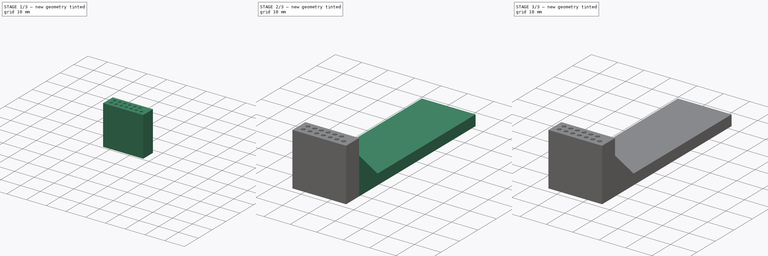
[diagram: build sequence overview — one tinted view per stage of 3, left to right]
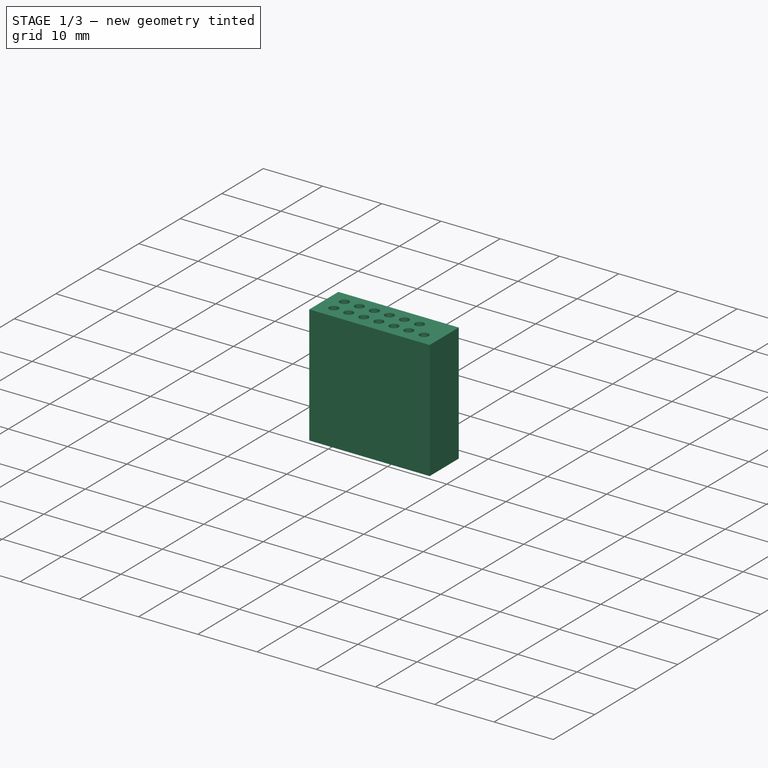
[diagram: stage 1 of 3 — iso view after this stage's code; geometry added in this stage tinted green]
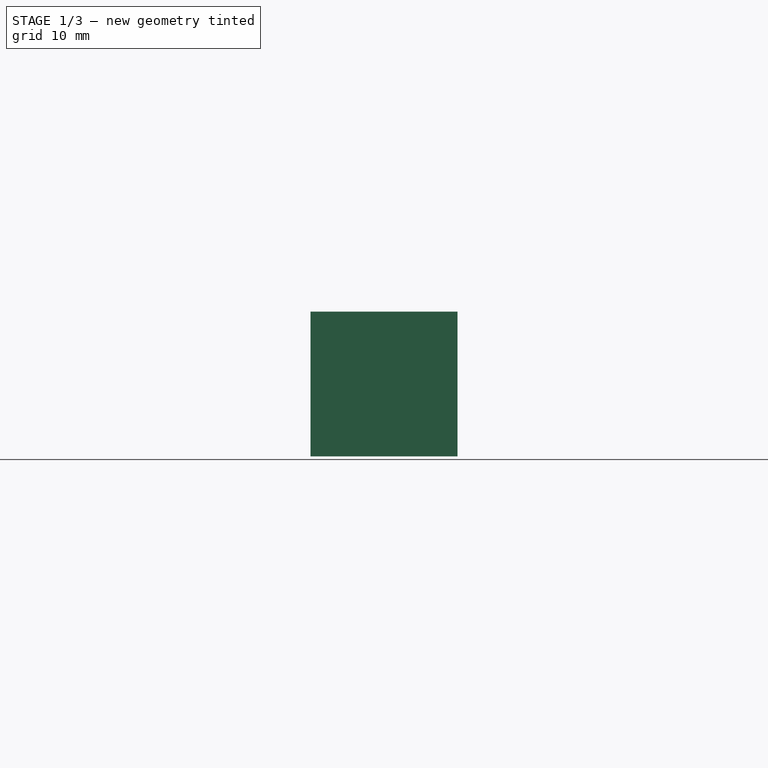
[diagram: stage 1 of 3 — front view after this stage's code; geometry added in this stage tinted green]
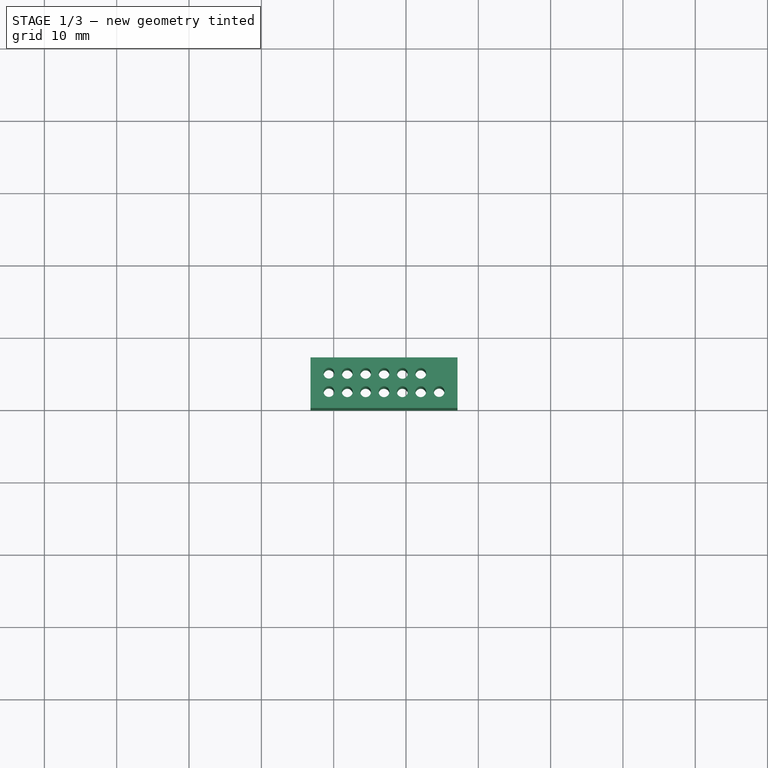
[diagram: stage 1 of 3 — top view after this stage's code; geometry added in this stage tinted green]
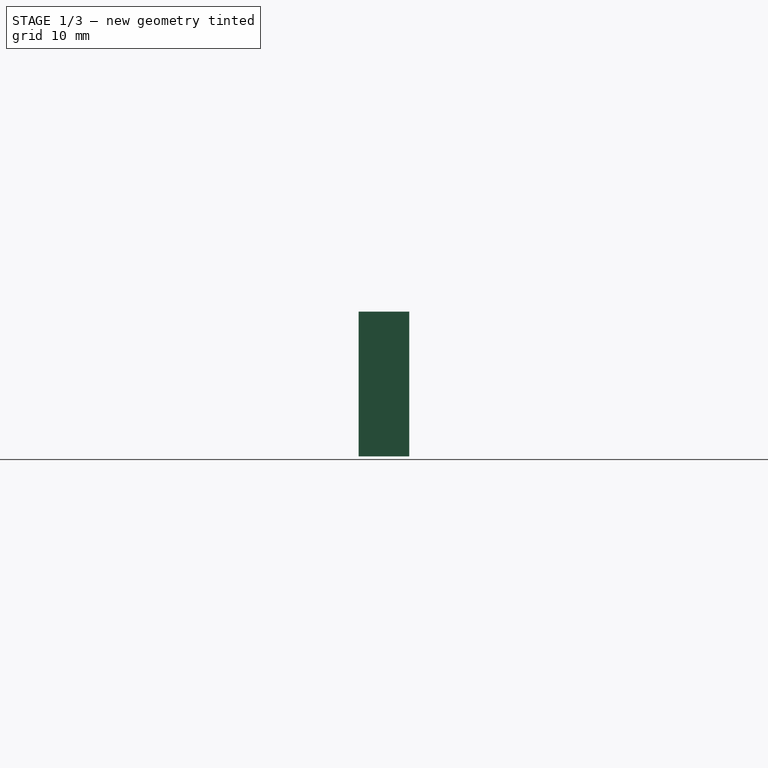
[diagram: stage 1 of 3 — right view after this stage's code; geometry added in this stage tinted green]
FCSTD DOCUMENT  (FreeCAD 0.16R6712 (Git))
Label: PogoProgrammer03
License: All rights reserved
LicenseURL: http://en.wikipedia.org/wiki/All_rights_reserved
objects: Sketcher::SketchObject×3, Part::Box×2, PartDesign::Pad×2, PartDesign::Pocket×1, Part::MultiFuse×1, Part::Chamfer×1
note: 13 computed .brp shape members not serialized (recipe doc carries the construction recipe); baked Part::Feature solids carry a one-line shape summary decoded from their .brp

FEATURE [Part::Box] Box  label="Cube"
  Height = 20
  Length = 20.32
  Placement = pos=(-3.2,0,0) rot=(0,0,1;0rad)
  Width = 7
FEATURE [PartDesign::Pocket] Pocket
  Length = 20
  Placement = pos=(-3.2,0,0) rot=(0,0,1;0rad)
  Sketch = -> Sketch
  Type = 0
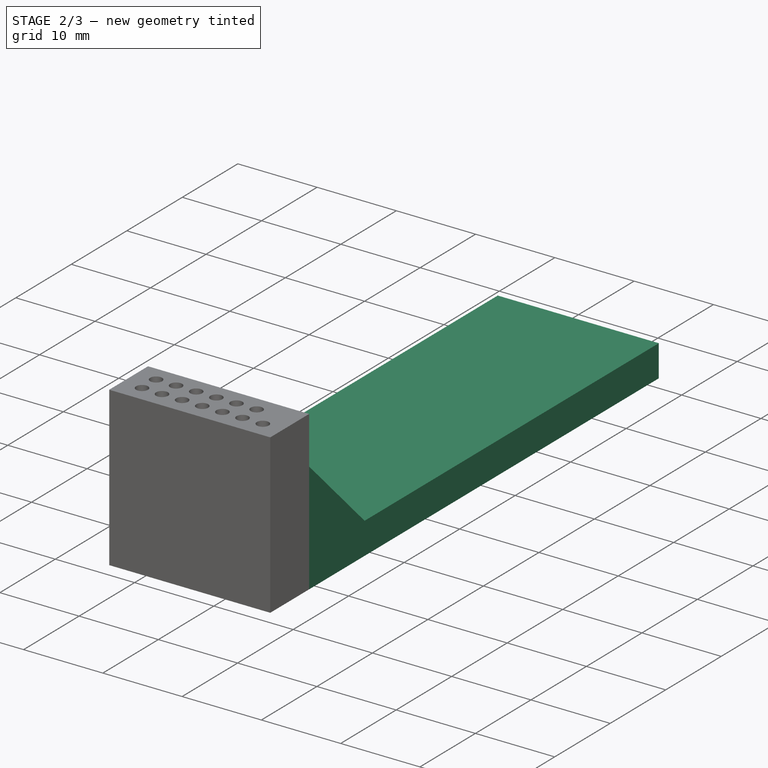
[diagram: stage 2 of 3 — iso view after this stage's code; geometry added in this stage tinted green]
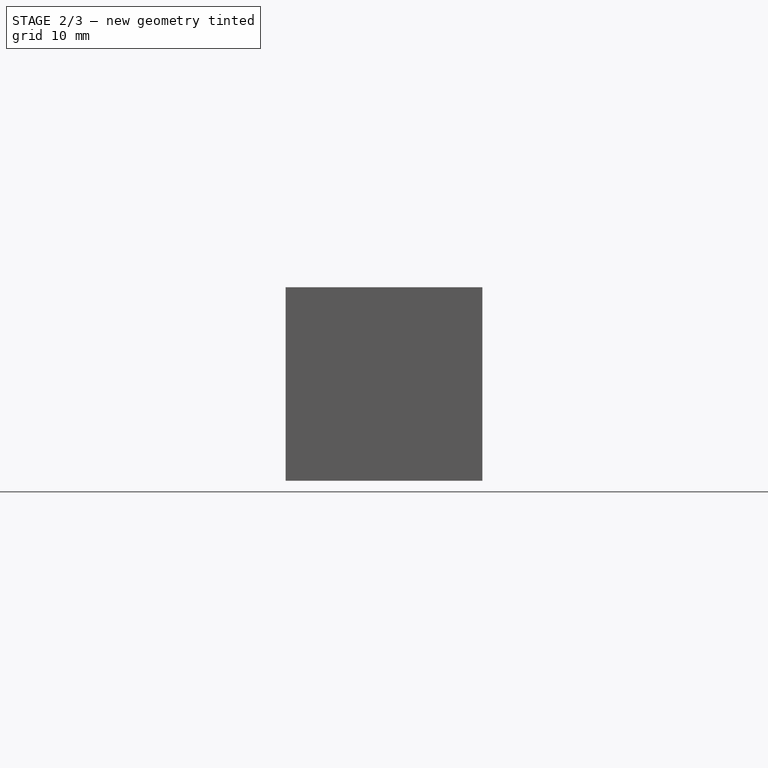
[diagram: stage 2 of 3 — front view after this stage's code; geometry added in this stage tinted green]
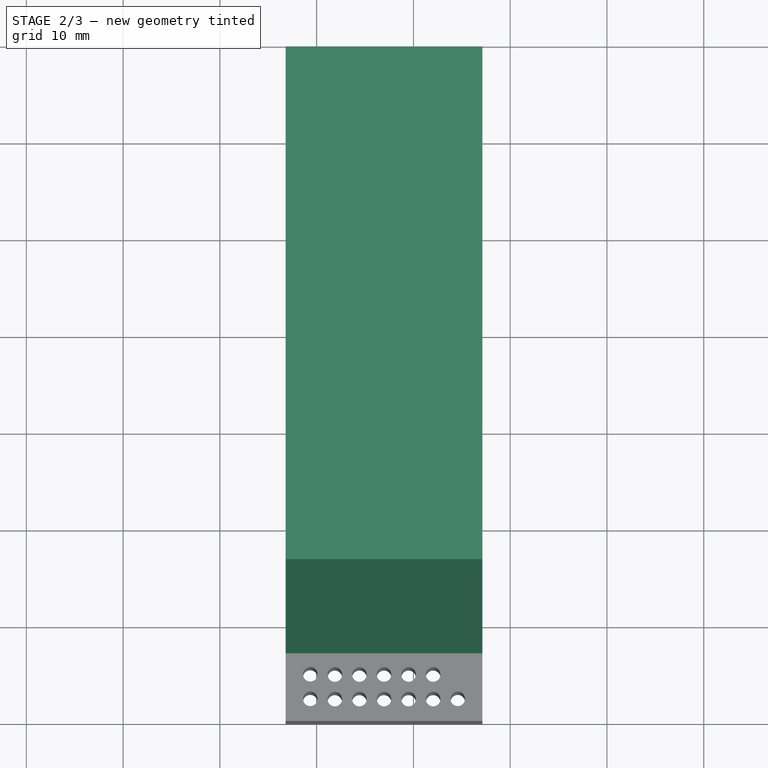
[diagram: stage 2 of 3 — top view after this stage's code; geometry added in this stage tinted green]
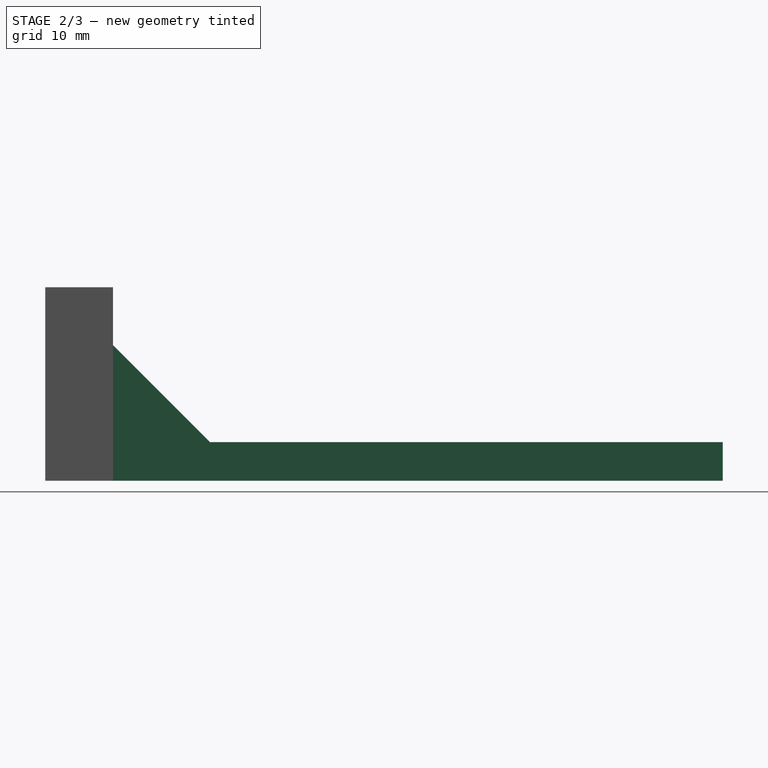
[diagram: stage 2 of 3 — right view after this stage's code; geometry added in this stage tinted green]
FEATURE [Sketcher::SketchObject] Sketch
  Placement = pos=(-3.2,0,20) rot=(0,0,1;0rad)
  Support = -> Box [Face6]
  sketch-geometry (13):
    g0: Circle CenterX=5.08 CenterY=2.26 CenterZ=0 NormalX=0 NormalY=0 NormalZ=1 Radius=0.75
    g1: Circle CenterX=7.62 CenterY=2.26 CenterZ=0 NormalX=0 NormalY=0 NormalZ=1 Radius=0.75
    g2: Circle CenterX=10.16 CenterY=2.26 CenterZ=0 NormalX=0 NormalY=0 NormalZ=1 Radius=0.75
    g3: Circle CenterX=12.7 CenterY=2.26 CenterZ=0 NormalX=0 NormalY=0 NormalZ=1 Radius=0.75
    g4: Circle CenterX=15.24 CenterY=2.26 CenterZ=0 NormalX=0 NormalY=0 NormalZ=1 Radius=0.75
    g5: Circle CenterX=5.08 CenterY=4.8 CenterZ=0 NormalX=0 NormalY=0 NormalZ=1 Radius=0.75
    g6: Circle CenterX=7.62 CenterY=4.8 CenterZ=0 NormalX=0 NormalY=0 NormalZ=1 Radius=0.75
    g7: Circle CenterX=10.16 CenterY=4.8 CenterZ=0 NormalX=0 NormalY=0 NormalZ=1 Radius=0.75
    g8: Circle CenterX=12.7 CenterY=4.8 CenterZ=0 NormalX=0 NormalY=0 NormalZ=1 Radius=0.75
    g9: Circle CenterX=15.24 CenterY=4.8 CenterZ=0 NormalX=0 NormalY=0 NormalZ=1 Radius=0.75
    g10: Circle CenterX=2.54 CenterY=2.28648 CenterZ=0 NormalX=0 NormalY=0 NormalZ=1 Radius=0.75
    g11: Circle CenterX=2.54 CenterY=4.82648 CenterZ=0 NormalX=0 NormalY=0 NormalZ=1 Radius=0.75
    g12: Circle CenterX=17.78 CenterY=2.28648 CenterZ=0 NormalX=0 NormalY=0 NormalZ=1 Radius=0.75
  constraints (38):
    c: Radius(g0) = 0.75
    c: DistanceX(g1,g2) = 2.54
    c: DistanceX(g2,g3) = 2.54
    c: DistanceX(g3,g4) = 2.54
    c: DistanceX(g0,g1) = 2.54
    c: Equal(g0,g5) = 1
    c: DistanceX(g6,g7) = 2.54
    c: DistanceX(g7,g8) = 2.54
    c: DistanceX(g8,g9) = 2.54
    c: DistanceX(g5,g6) = 2.54
    c: DistanceY(g0,g5) = 2.54
    c: DistanceY(g1,g6) = 2.54
    c: DistanceY(g2,g7) = 2.54
    c: DistanceY(g3,g8) = 2.54
    c: DistanceY(g4,g9) = 2.54
    c: DistanceX(g-1,g0) = 5.08
    c: DistanceX(g-2,g5) = 5.08
    c: DistanceY(g-1,g4) = 2.26
    c: DistanceY(g-1,g3) = 2.26
    c: DistanceY(g-1,g2) = 2.26
    c: DistanceY(g-1,g1) = 2.26
    c: DistanceY(g-1,g0) = 2.26
    c: Equal(g5,g6)
    c: Equal(g6,g7)
    c: Equal(g7,g8)
    c: Equal(g8,g9)
    c: Equal(g9,g4)
    c: Equal(g4,g3)
    c: Equal(g3,g2)
    c: Equal(g2,g1)
    c: DistanceX(g10,g0) = 2.54
    c: DistanceX(g4,g12) = 2.54
    c: DistanceY(g12,g11) = 2.54
    c: Equal(g10,g12)
    c: Equal(g12,g11)
    c: Radius(g10) = 0.75
    c: DistanceY(g10,g11) = 2.54
    c: DistanceX(g11,g5) = 2.54
FEATURE [Part::Box] Box002  label="Cube002"
  Height = 4
  Length = 20.32
  Placement = pos=(-3.2,7,0) rot=(0,0,1;0rad)
  Width = 63
FEATURE [Part::MultiFuse] Fusion
  Shapes = -> [Pocket,Box002]
FEATURE [Part::Chamfer] Chamfer
  Base = -> Fusion
  Edges = 1 edges r=10: [Edge57]
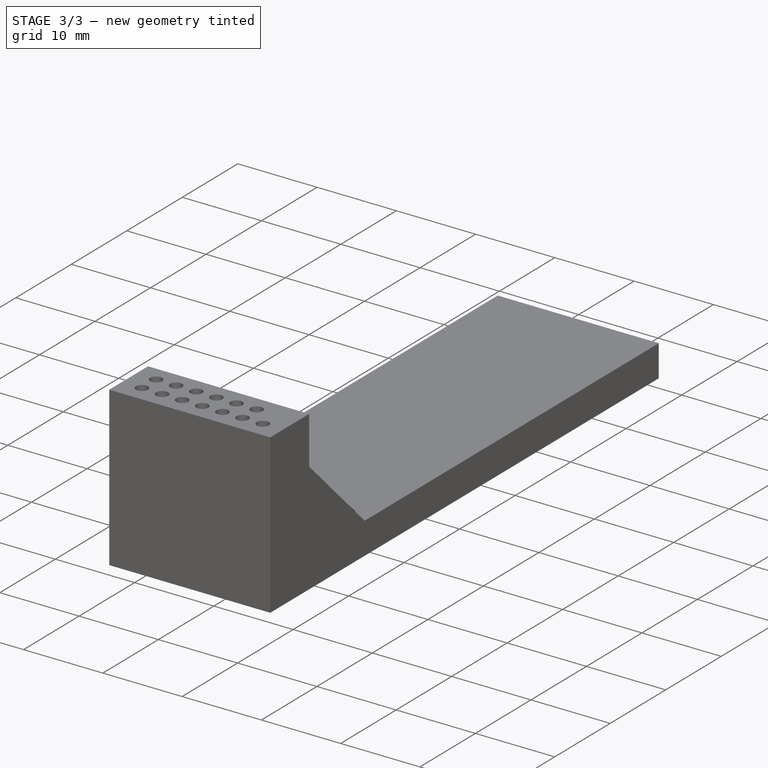
[diagram: stage 3 of 3 — iso view after this stage's code; geometry added in this stage tinted green]
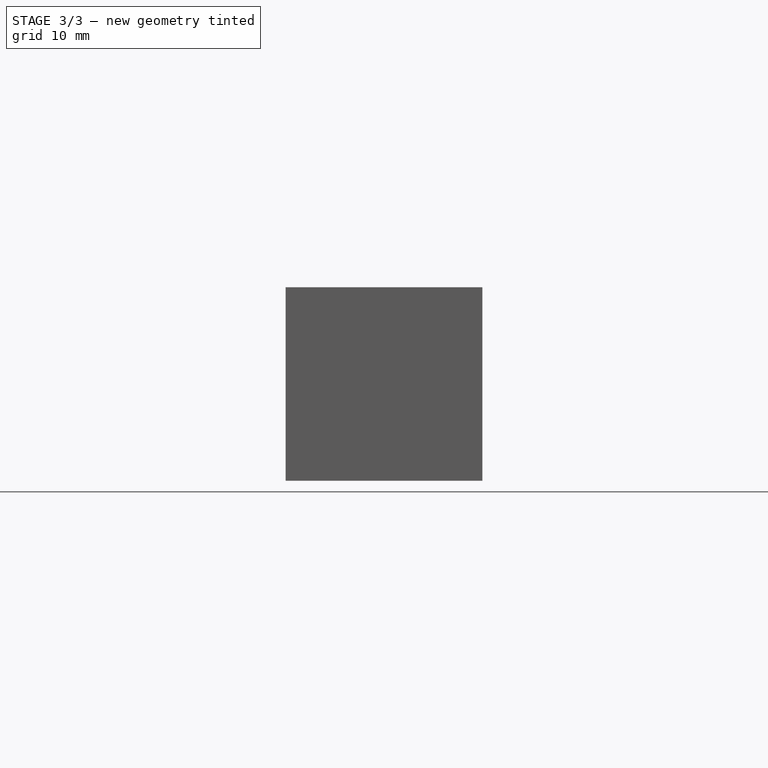
[diagram: stage 3 of 3 — front view after this stage's code; geometry added in this stage tinted green]
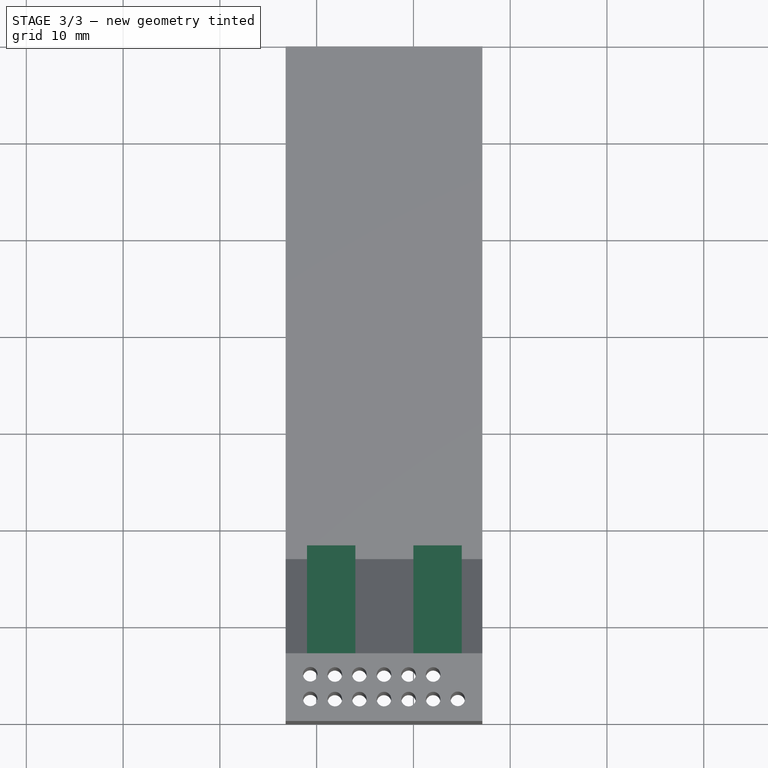
[diagram: stage 3 of 3 — top view after this stage's code; geometry added in this stage tinted green]
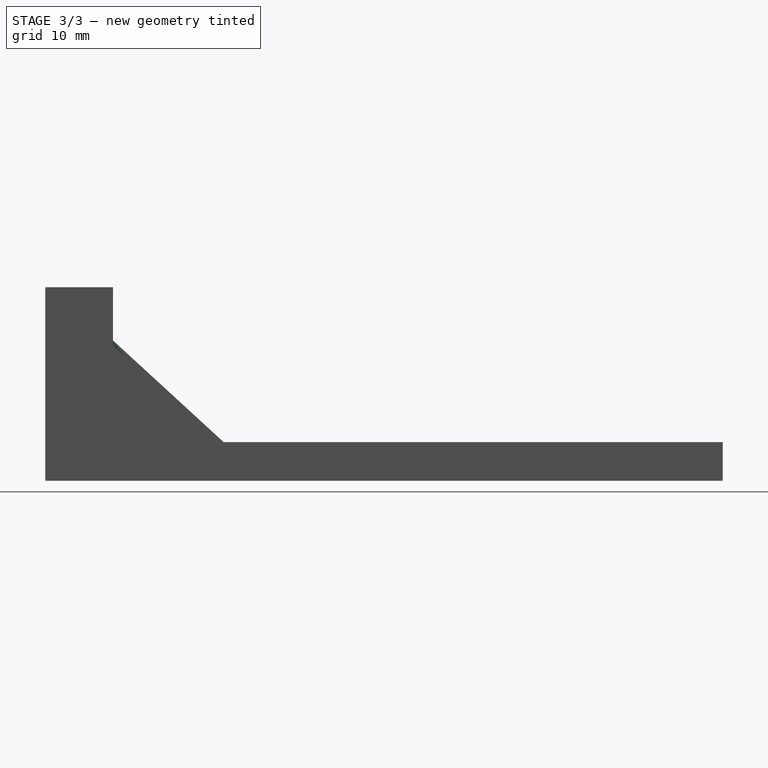
[diagram: stage 3 of 3 — right view after this stage's code; geometry added in this stage tinted green]
FEATURE [Sketcher::SketchObject] Sketch001
  Placement = pos=(-1,0,0) rot=(0.57735,0.57735,0.57735;2.0944rad)
  sketch-geometry (4):
    g0: LineSegment StartX=6.96155 StartY=14.5294 StartZ=0 EndX=6.96155 EndY=11.5377 EndZ=0
    g1: LineSegment StartX=6.96155 StartY=11.5377 StartZ=0 EndX=14.666 EndY=4 EndZ=0
    g2: LineSegment StartX=14.666 StartY=4 StartZ=0 EndX=18.4221 EndY=4 EndZ=0
    g3: LineSegment StartX=18.4221 StartY=4 StartZ=0 EndX=6.96155 EndY=14.5294 EndZ=0
  constraints (6):
    c: Vertical(g0)
    c: Coincident(g0,g1)
    c: Coincident(g1,g2)
    c: Horizontal(g2)
    c: Coincident(g2,g3)
    c: Coincident(g0,g3)
FEATURE [PartDesign::Pad] Pad
  Length = 5
  Length2 = 100
  Placement = pos=(-1,0,0) rot=(0.57735,0.57735,0.57735;2.0944rad)
  Sketch = -> Sketch001
  Type = 0
FEATURE [Sketcher::SketchObject] Sketch002
  Placement = pos=(10,0,0) rot=(0.57735,0.57735,0.57735;2.0944rad)
  sketch-geometry (4):
    g0: LineSegment StartX=6.96155 StartY=14.5294 StartZ=0 EndX=6.96155 EndY=11.5377 EndZ=0
    g1: LineSegment StartX=6.96155 StartY=11.5377 StartZ=0 EndX=14.666 EndY=4 EndZ=0
    g2: LineSegment StartX=14.666 StartY=4 StartZ=0 EndX=18.4221 EndY=4 EndZ=0
    g3: LineSegment StartX=18.4221 StartY=4 StartZ=0 EndX=6.96155 EndY=14.5294 EndZ=0
  constraints (6):
    c: Vertical(g0)
    c: Coincident(g0,g1)
    c: Coincident(g1,g2)
    c: Horizontal(g2)
    c: Coincident(g2,g3)
    c: Coincident(g0,g3)
FEATURE [PartDesign::Pad] Pad001
  Length = 5
  Length2 = 100
  Placement = pos=(10,0,0) rot=(0.57735,0.57735,0.57735;2.0944rad)
  Sketch = -> Sketch002
  Type = 0
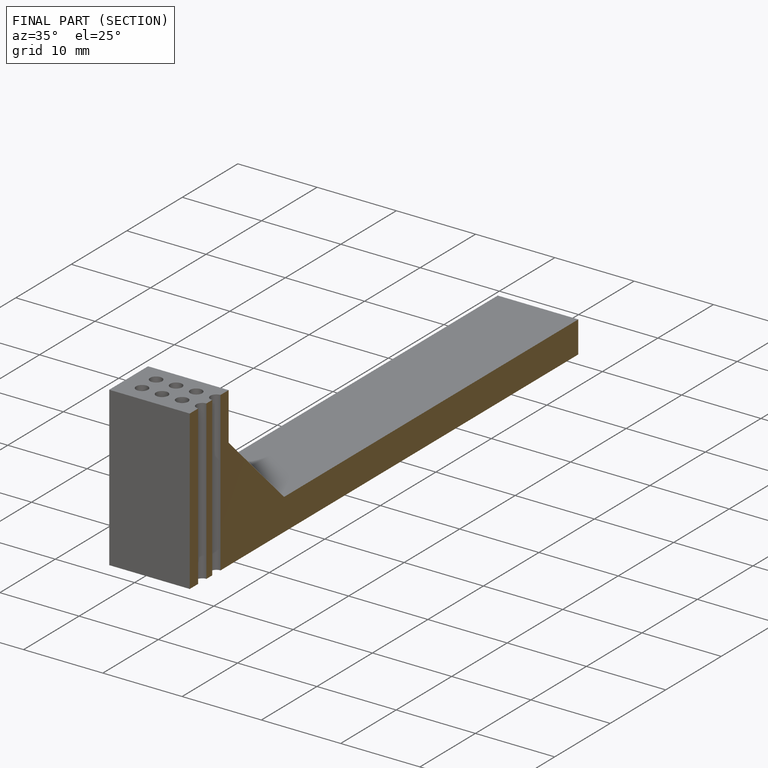
[diagram: finished part — half-section view (interior)]
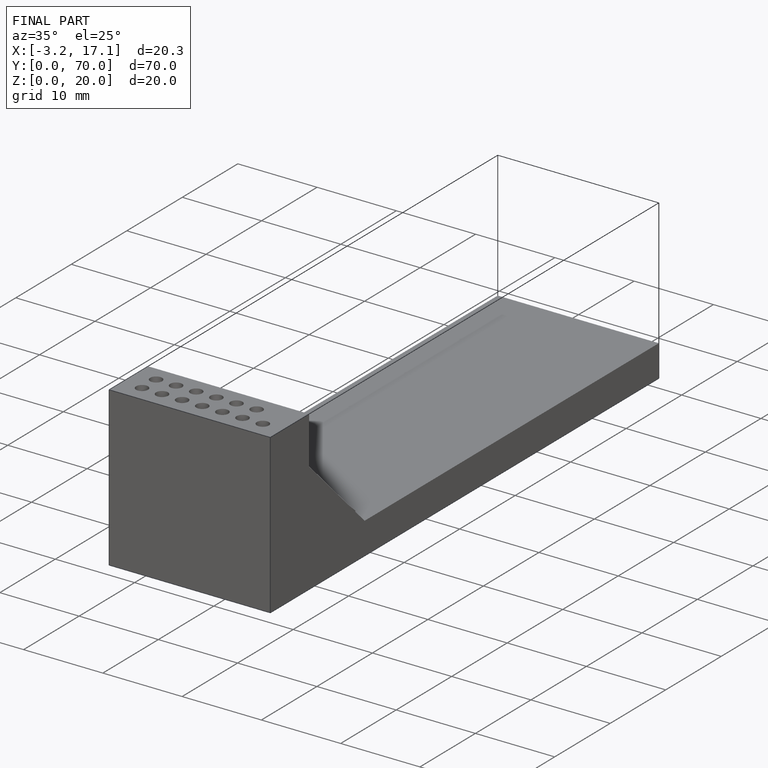
[diagram: finished part — iso view with bounding-box wireframe]
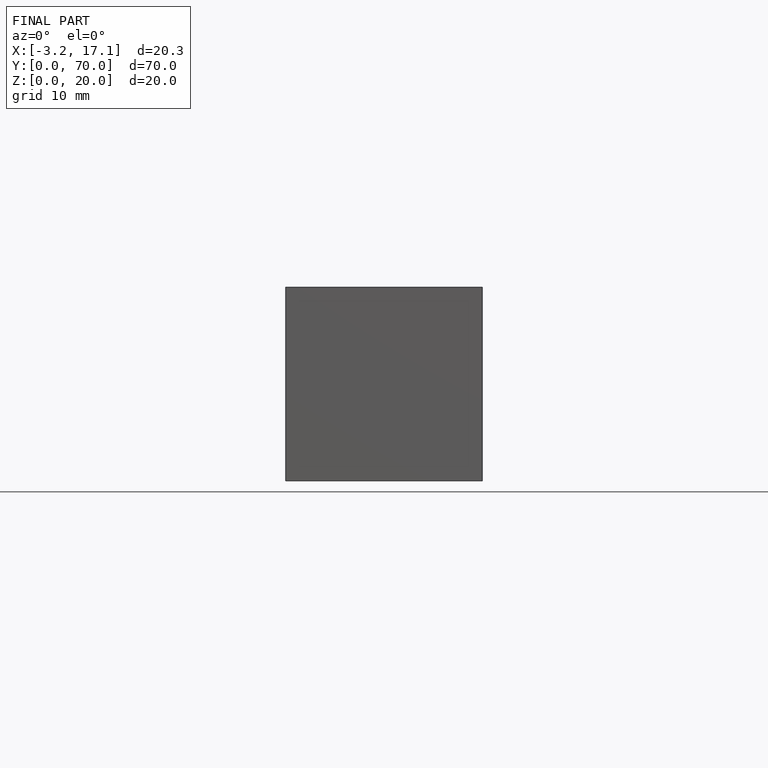
[diagram: finished part — front view with bounding-box wireframe]
